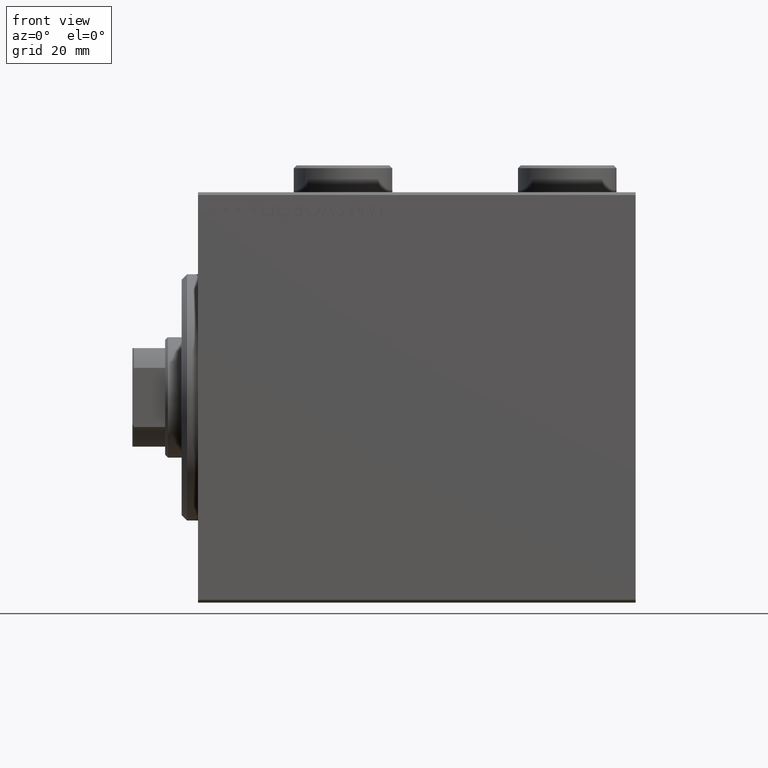
[diagram: clean part render]
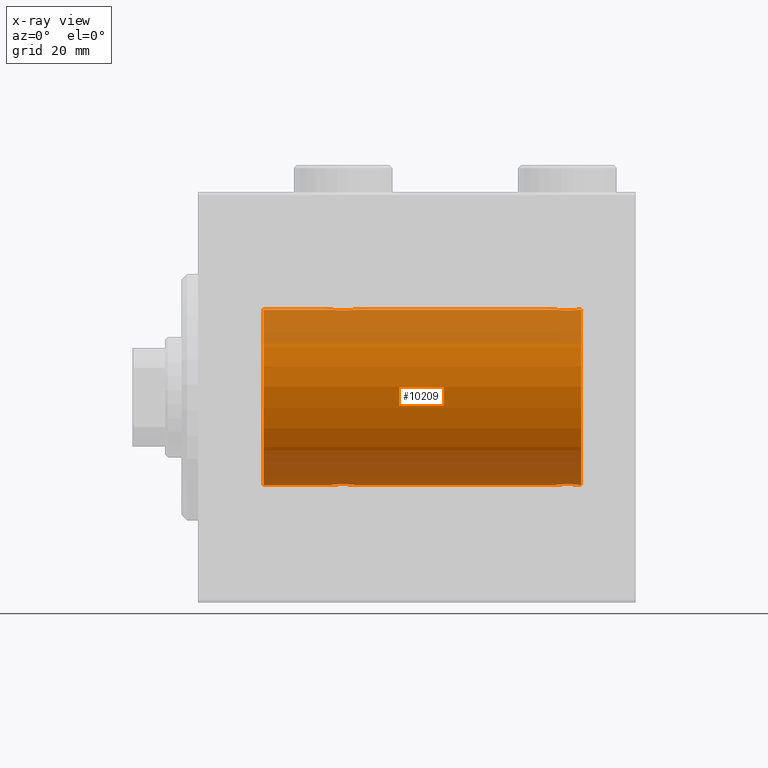
[diagram: x-ray — body ghosted, one internal face saturated and labeled with its STEP entity id]
A machine part, front view, then the same camera in x-ray: the body is ghosted and one INTERNAL B-rep face — a face not visible from any outside direction — is saturated and labeled: STEP entity #10209.
In plain terms, the highlighted cylindrical surface (partial cylindrical patch) has radius 16 mm, axis along (-1, -0, -0).
Its self-contained STEP definition (entity closure, byte-faithful):
#80 = CARTESIAN_POINT ( 'NONE',  ( 24.90061418674620342, -1.228793614424124714, 15.95381972293797368 ) ) ;
#140 = CARTESIAN_POINT ( 'NONE',  ( 70.00000000000000000, 0.000000000000000000, 16.00000000000000000 ) ) ;
#237 = VERTEX_POINT ( 'NONE', #42681 ) ;
#736 = CARTESIAN_POINT ( 'NONE',  ( 25.27971966521589664, -1.589957129871035768, 15.92097237843274549 ) ) ;
#782 = CARTESIAN_POINT ( 'NONE',  ( 70.00000000000000000, 1.959434878635765131E-15, -16.00000000000000000 ) ) ;
#1036 = VECTOR ( 'NONE', #15393, 1000.000000000000000 ) ;
#1106 = CARTESIAN_POINT ( 'NONE',  ( 67.23629537121824740, -1.986819684797422658, 15.87618369521983830 ) ) ;
#1187 = VERTEX_POINT ( 'NONE', #12704 ) ;
#1708 = EDGE_CURVE ( 'NONE', #34158, #16261, #5881, .T. ) ;
#2065 = CARTESIAN_POINT ( 'NONE',  ( 24.50000000000000711, -0.2645044045393414311, -16.00000000000000355 ) ) ;
#2559 = VECTOR ( 'NONE', #24197, 1000.000000000000000 ) ;
#2796 = CARTESIAN_POINT ( 'NONE',  ( 28.49999999999999645, -1.207828523974853969E-15, 16.00000000000000000 ) ) ;
#3500 = VECTOR ( 'NONE', #18303, 1000.000000000000000 ) ;
#3529 = CARTESIAN_POINT ( 'NONE',  ( 24.50000000000000355, -0.2611263091397209579, 16.00000000000000000 ) ) ;
#3582 = CARTESIAN_POINT ( 'NONE',  ( 24.50000000000000000, -2.931586893697621157E-15, -16.00000000000000000 ) ) ;
#3755 = CARTESIAN_POINT ( 'NONE',  ( 26.63080408576578861, -2.000094120337581050, 15.87449600834271735 ) ) ;
#3983 = CYLINDRICAL_SURFACE ( 'NONE', #35756, 16.00000000000000000 ) ;
#4202 = ORIENTED_EDGE ( 'NONE', *, *, #1708, .T. ) ;
#4578 = CARTESIAN_POINT ( 'NONE',  ( 66.17695155286794773, -1.505501573616972788, 15.92928245046055657 ) ) ;
#4800 = CARTESIAN_POINT ( 'NONE',  ( 68.01664001081053357, -1.936513707523808359, 15.88239801746206226 ) ) ;
#4829 = ORIENTED_EDGE ( 'NONE', *, *, #39714, .T. ) ;
#5025 = CARTESIAN_POINT ( 'NONE',  ( 69.24678128854694137, -1.008257970366810641, 15.97001510549667458 ) ) ;
#5177 = DIRECTION ( 'NONE',  ( -1.000000000000000000, 0.000000000000000000, 0.000000000000000000 ) ) ;
#5184 = CARTESIAN_POINT ( 'NONE',  ( 70.00000000000000000, 0.000000000000000000, 16.00000000000000000 ) ) ;
#5293 = CARTESIAN_POINT ( 'NONE',  ( 25.49921634246596014, -1.736521253711144963, -15.90565326803671375 ) ) ;
#5477 = CARTESIAN_POINT ( 'NONE',  ( 65.75183372993789988, -1.005876079953903046, 15.97016854943970188 ) ) ;
#5519 = CARTESIAN_POINT ( 'NONE',  ( 24.90236864042802267, -1.231048876942801407, -15.95364199493483426 ) ) ;
#5759 = CARTESIAN_POINT ( 'NONE',  ( 27.14636362870458086, -1.897207606501646104, -15.88720136683947537 ) ) ;
#5881 = LINE ( 'NONE', #32673, #1036 ) ;
#5996 = CARTESIAN_POINT ( 'NONE',  ( 25.98335998918949841, -1.936513707523809469, -15.88239801746204805 ) ) ;
#6037 = ORIENTED_EDGE ( 'NONE', *, *, #23940, .T. ) ;
#6182 = ORIENTED_EDGE ( 'NONE', *, *, #27705, .F. ) ;
#6544 = CARTESIAN_POINT ( 'NONE',  ( 68.50320784791315987, -1.735114343256366931, -15.90580722143557502 ) ) ;
#6772 = CARTESIAN_POINT ( 'NONE',  ( 27.38592149968496514, -1.797863738508701736, 15.89874935709250892 ) ) ;
#6992 = CARTESIAN_POINT ( 'NONE',  ( 25.17695155286792286, -1.505501573616977673, 15.92928245046054947 ) ) ;
#7219 = CARTESIAN_POINT ( 'NONE',  ( 24.55248858968731085, -0.5244724041436337192, 15.99321727742820975 ) ) ;
#7661 = CARTESIAN_POINT ( 'NONE',  ( 24.50000000000000000, -2.739635037742051899E-23, 16.00000000000000000 ) ) ;
#8032 = EDGE_CURVE ( 'NONE', #21753, #237, #10590, .T. ) ;
#8186 = CARTESIAN_POINT ( 'NONE',  ( 70.00000000000000000, 1.959434878635765131E-15, -16.00000000000000000 ) ) ;
#8251 = CARTESIAN_POINT ( 'NONE',  ( 24.50000000000000000, -2.739635037742051899E-23, 16.00000000000000000 ) ) ;
#8270 = CARTESIAN_POINT ( 'NONE',  ( 67.36633336824382923, -1.999904855391108960, 15.87451985347843042 ) ) ;
#8536 = CARTESIAN_POINT ( 'NONE',  ( 26.36919591423421139, -2.000094120337574388, -15.87449600834271024 ) ) ;
#8642 = CARTESIAN_POINT ( 'NONE',  ( 11.99999999999999645, 0.000000000000000000, 0.000000000000000000 ) ) ;
#9795 = LINE ( 'NONE', #10254, #41289 ) ;
#10209 = ADVANCED_FACE ( 'NONE', ( #14149 ), #3983, .F. ) ;
#10254 = CARTESIAN_POINT ( 'NONE',  ( 70.00000000000000000, 0.000000000000000000, 16.00000000000000000 ) ) ;
#10451 = CARTESIAN_POINT ( 'NONE',  ( 27.14376670717340545, -1.898087287925302125, 15.88709570026284545 ) ) ;
#10590 = LINE ( 'NONE', #45157, #2559 ) ;
#10669 = CARTESIAN_POINT ( 'NONE',  ( 26.76082820349364866, -1.987201773464435828, 15.87613558886576470 ) ) ;
#10896 = CARTESIAN_POINT ( 'NONE',  ( 28.49999999999999289, -0.2645044045393371013, 16.00000000000000000 ) ) ;
#11692 = CARTESIAN_POINT ( 'NONE',  ( 28.49999999999999645, 1.959434851239213200E-15, -16.00000000000000000 ) ) ;
#11906 = DIRECTION ( 'NONE',  ( -1.000000000000000000, -0.000000000000000000, -0.000000000000000000 ) ) ;
#11986 = CARTESIAN_POINT ( 'NONE',  ( 27.82304844713206293, -1.505501573616970568, -15.92928245046054947 ) ) ;
#12172 = CARTESIAN_POINT ( 'NONE',  ( 65.90061418674619631, -1.228793614424119829, 15.95381972293797013 ) ) ;
#12231 = ORIENTED_EDGE ( 'NONE', *, *, #32364, .F. ) ;
#12322 = DIRECTION ( 'NONE',  ( -1.000000000000000000, -0.000000000000000000, -0.000000000000000000 ) ) ;
#12666 = CARTESIAN_POINT ( 'NONE',  ( 28.24816627006211078, -1.005876079953899049, -15.97016854943970188 ) ) ;
#12696 = ORIENTED_EDGE ( 'NONE', *, *, #14827, .T. ) ;
#12704 = CARTESIAN_POINT ( 'NONE',  ( 11.99999999999999645, 0.000000000000000000, 16.00000000000000000 ) ) ;
#12738 = DIRECTION ( 'NONE',  ( -1.000000000000000000, 0.000000000000000000, 0.000000000000000000 ) ) ;
#12757 = CARTESIAN_POINT ( 'NONE',  ( 68.01937114547928331, -1.935780515549987646, -15.88248768234623576 ) ) ;
#12787 = AXIS2_PLACEMENT_3D ( 'NONE', #19428, #12738, #37176 ) ;
#14149 = FACE_OUTER_BOUND ( 'NONE', #34708, .T. ) ;
#14343 = CARTESIAN_POINT ( 'NONE',  ( 11.99999999999999645, 1.959434878635765131E-15, -16.00000000000000000 ) ) ;
#14353 = CARTESIAN_POINT ( 'NONE',  ( 28.24678128854693426, -1.008257970366811751, 15.97001510549667103 ) ) ;
#14544 = ORIENTED_EDGE ( 'NONE', *, *, #8032, .T. ) ;
#14580 = CARTESIAN_POINT ( 'NONE',  ( 24.75183372993787856, -1.005876079953904600, 15.97016854943970543 ) ) ;
#14803 = CARTESIAN_POINT ( 'NONE',  ( 25.98062885452072734, -1.935780515549995862, 15.88248768234623221 ) ) ;
#14827 = EDGE_CURVE ( 'NONE', #37117, #29573, #28811, .T. ) ;
#15393 = DIRECTION ( 'NONE',  ( -1.000000000000000000, -0.000000000000000000, -0.000000000000000000 ) ) ;
#15628 = CARTESIAN_POINT ( 'NONE',  ( 66.98062885452073090, -1.935780515549992975, 15.88248768234622865 ) ) ;
#16261 = VERTEX_POINT ( 'NONE', #14343 ) ;
#16443 = CARTESIAN_POINT ( 'NONE',  ( 68.72028033478413533, -1.589957129871033104, -15.92097237843275259 ) ) ;
#16758 = EDGE_CURVE ( 'NONE', #237, #30036, #31996, .T. ) ;
#17359 = CARTESIAN_POINT ( 'NONE',  ( 68.38846140829284082, -1.796613193944151865, -15.89889131367403330 ) ) ;
#17730 = VERTEX_POINT ( 'NONE', #40576 ) ;
#17815 = CARTESIAN_POINT ( 'NONE',  ( 27.01664001081050515, -1.936513707523814354, 15.88239801746204805 ) ) ;
#18040 = VERTEX_POINT ( 'NONE', #23685 ) ;
#18303 = DIRECTION ( 'NONE',  ( -1.000000000000000000, -0.000000000000000000, -0.000000000000000000 ) ) ;
#18635 = CARTESIAN_POINT ( 'NONE',  ( 66.27971966521590730, -1.589957129871035102, 15.92097237843275259 ) ) ;
#18785 = EDGE_CURVE ( 'NONE', #17730, #18040, #32395, .T. ) ;
#18859 = CARTESIAN_POINT ( 'NONE',  ( 68.14376670717344098, -1.898087287925297462, 15.88709570026284723 ) ) ;
#19089 = CARTESIAN_POINT ( 'NONE',  ( 69.44674004695640690, -0.5272875822566811532, 15.99312147175147025 ) ) ;
#19132 = CARTESIAN_POINT ( 'NONE',  ( 24.55325995304361086, -0.5272875822566835957, -15.99312147175147736 ) ) ;
#19231 = CARTESIAN_POINT ( 'NONE',  ( 69.09938581325381790, -1.228793614424116942, -15.95381972293797368 ) ) ;
#19243 = DIRECTION ( 'NONE',  ( 0.000000000000000000, 0.000000000000000000, 1.000000000000000000 ) ) ;
#19428 = CARTESIAN_POINT ( 'NONE',  ( 70.00000000000000000, 0.000000000000000000, 0.000000000000000000 ) ) ;
#19814 = CARTESIAN_POINT ( 'NONE',  ( 26.23917179650637266, -1.987201773464430055, -15.87613558886576470 ) ) ;
#19911 = CARTESIAN_POINT ( 'NONE',  ( 65.75321871145310126, -1.008257970366813083, -15.97001510549667813 ) ) ;
#20044 = CARTESIAN_POINT ( 'NONE',  ( 28.50000000000000355, -0.2611263091397186265, -16.00000000000000355 ) ) ;
#20129 = CARTESIAN_POINT ( 'NONE',  ( 68.14636362870457731, -1.897207606501646104, -15.88720136683947182 ) ) ;
#20819 = CARTESIAN_POINT ( 'NONE',  ( 66.28178127159715416, -1.591545514129671712, -15.92081325887754417 ) ) ;
#21047 = CARTESIAN_POINT ( 'NONE',  ( 27.50078365753405407, -1.736521253711149182, 15.90565326803671375 ) ) ;
#21257 = VERTEX_POINT ( 'NONE', #11692 ) ;
#21273 = CARTESIAN_POINT ( 'NONE',  ( 26.36633336824380436, -1.999904855391111402, 15.87451985347842687 ) ) ;
#21618 = VERTEX_POINT ( 'NONE', #140 ) ;
#21753 = VERTEX_POINT ( 'NONE', #8186 ) ;
#22555 = CARTESIAN_POINT ( 'NONE',  ( 66.61153859170718761, -1.796613193944154085, 15.89889131367403330 ) ) ;
#22592 = CARTESIAN_POINT ( 'NONE',  ( 70.00000000000000000, 0.000000000000000000, 0.000000000000000000 ) ) ;
#22596 = CARTESIAN_POINT ( 'NONE',  ( 25.85623329282660166, -1.898087287925298794, -15.88709570026284545 ) ) ;
#22690 = CARTESIAN_POINT ( 'NONE',  ( 69.24816627006211434, -1.005876079953901492, -15.97016854943969832 ) ) ;
#23267 = CARTESIAN_POINT ( 'NONE',  ( 24.75321871145306218, -1.008257970366813749, -15.97001510549667458 ) ) ;
#23502 = CARTESIAN_POINT ( 'NONE',  ( 28.09938581325380724, -1.228793614424118497, -15.95381972293796835 ) ) ;
#23685 = CARTESIAN_POINT ( 'NONE',  ( 69.50000000000000000, 3.590027768233731054E-15, 16.00000000000000000 ) ) ;
#23940 = EDGE_CURVE ( 'NONE', #16261, #1187, #39698, .T. ) ;
#24197 = DIRECTION ( 'NONE',  ( -1.000000000000000000, -0.000000000000000000, -0.000000000000000000 ) ) ;
#24503 = CARTESIAN_POINT ( 'NONE',  ( 25.61153859170720537, -1.796613193944160969, 15.89889131367403685 ) ) ;
#24727 = CARTESIAN_POINT ( 'NONE',  ( 27.71821872840285295, -1.591545514129674821, 15.92081325887754595 ) ) ;
#24759 = EDGE_CURVE ( 'NONE', #17730, #29573, #36769, .T. ) ;
#24953 = CARTESIAN_POINT ( 'NONE',  ( 28.49999999999999645, -1.207828523974853969E-15, 16.00000000000000000 ) ) ;
#25004 = ORIENTED_EDGE ( 'NONE', *, *, #26332, .T. ) ;
#25173 = CARTESIAN_POINT ( 'NONE',  ( 25.49679215208682592, -1.735114343256370262, 15.90580722143557502 ) ) ;
#26000 = CARTESIAN_POINT ( 'NONE',  ( 68.71821872840286005, -1.591545514129673267, 15.92081325887755305 ) ) ;
#26037 = CARTESIAN_POINT ( 'NONE',  ( 26.63366663175618498, -1.999904855391105851, -15.87451985347842687 ) ) ;
#26132 = CARTESIAN_POINT ( 'NONE',  ( 69.50000000000000000, -0.2611263091397181269, -16.00000000000000000 ) ) ;
#26227 = CARTESIAN_POINT ( 'NONE',  ( 69.49999999999997158, -0.2645044045393390997, 15.99999999999999645 ) ) ;
#26332 = EDGE_CURVE ( 'NONE', #21257, #34158, #29920, .T. ) ;
#26715 = CARTESIAN_POINT ( 'NONE',  ( 25.61407850031505617, -1.797863738508699294, -15.89874935709251247 ) ) ;
#26811 = CARTESIAN_POINT ( 'NONE',  ( 67.63366663175619919, -1.999904855391107183, -15.87451985347843042 ) ) ;
#27048 = CARTESIAN_POINT ( 'NONE',  ( 65.55325995304360731, -0.5272875822566849280, -15.99312147175147025 ) ) ;
#27705 = EDGE_CURVE ( 'NONE', #21618, #18040, #9795, .T. ) ;
#28404 = CARTESIAN_POINT ( 'NONE',  ( 28.44674004695639624, -0.5272875822566815973, 15.99312147175146670 ) ) ;
#28811 = B_SPLINE_CURVE_WITH_KNOTS ( 'NONE', 3,
 ( #7661, #3529, #7219, #14580, #80, #6992, #736, #25173, #24503, #38568, #14803, #28845, #21273, #3755, #10669, #17815, #10451, #6772, #21047, #24727, #38795, #31867, #14353, #28404, #10896, #24953 ),
 .UNSPECIFIED., .F., .F.,
 ( 4, 2, 2, 2, 2, 2, 2, 2, 2, 2, 2, 2, 4 ),
 ( 0.006259031236593858190, 0.007041222816026928080, 0.007823414395459998838, 0.008214510185176533349, 0.008605605974893067861, 0.008996701764609604107, 0.009387797554326138619, 0.009778893344042673130, 0.01016998913375920938, 0.01056108492347574389, 0.01095218071319227840, 0.01173437229262534048, 0.01251656387205840430 ),
 .UNSPECIFIED. ) ;
#28845 = CARTESIAN_POINT ( 'NONE',  ( 26.23629537121825095, -1.986819684797424435, 15.87618369521983475 ) ) ;
#29218 = CARTESIAN_POINT ( 'NONE',  ( 66.49679215208684013, -1.735114343256368930, 15.90580722143557857 ) ) ;
#29448 = CARTESIAN_POINT ( 'NONE',  ( 65.50000000000001421, -0.2611263091397203473, 16.00000000000000355 ) ) ;
#29485 = CARTESIAN_POINT ( 'NONE',  ( 28.44751141031268915, -0.5244724041436300555, -15.99321727742820620 ) ) ;
#29573 = VERTEX_POINT ( 'NONE', #2796 ) ;
#29581 = CARTESIAN_POINT ( 'NONE',  ( 69.50000000000000000, 1.959434851248285101E-15, -16.00000000000000000 ) ) ;
#29590 = CARTESIAN_POINT ( 'NONE',  ( 65.50000000000000000, -5.213754752715431108E-15, -16.00000000000000000 ) ) ;
#29668 = CARTESIAN_POINT ( 'NONE',  ( 67.63080408576577440, -2.000094120337579273, 15.87449600834271024 ) ) ;
#29920 = B_SPLINE_CURVE_WITH_KNOTS ( 'NONE', 3,
 ( #33871, #20044, #29485, #12666, #23502, #11986, #37569, #40109, #43557, #5759, #36656, #33637, #26037, #8536, #19814, #5996, #22596, #26715, #5293, #44009, #34098, #5519, #23267, #19132, #2065, #33186 ),
 .UNSPECIFIED., .F., .F.,
 ( 4, 2, 2, 2, 2, 2, 2, 2, 2, 2, 2, 2, 4 ),
 ( 0.006259031236593877272, 0.007041222816026943693, 0.007823414395460009246, 0.008214510185176542023, 0.008605605974893074800, 0.008996701764609607577, 0.009387797554326140353, 0.009778893344042673130, 0.01016998913375920591, 0.01056108492347573868, 0.01095218071319227146, 0.01173437229262534222, 0.01251656387205841471 ),
 .UNSPECIFIED. ) ;
#30036 = VERTEX_POINT ( 'NONE', #29590 ) ;
#30493 = CARTESIAN_POINT ( 'NONE',  ( 67.36919591423422560, -2.000094120337576165, -15.87449600834271024 ) ) ;
#30847 = AXIS2_PLACEMENT_3D ( 'NONE', #8642, #5177, #19243 ) ;
#31179 = CARTESIAN_POINT ( 'NONE',  ( 66.85623329282658744, -1.898087287925300348, -15.88709570026284723 ) ) ;
#31414 = CARTESIAN_POINT ( 'NONE',  ( 68.82304844713208070, -1.505501573616970346, -15.92928245046055302 ) ) ;
#31867 = CARTESIAN_POINT ( 'NONE',  ( 28.09763135957198799, -1.231048876942802961, 15.95364199493483781 ) ) ;
#31907 = CIRCLE ( 'NONE', #12787, 16.00000000000000000 ) ;
#31996 = B_SPLINE_CURVE_WITH_KNOTS ( 'NONE', 3,
 ( #29581, #26132, #40207, #22690, #19231, #31414, #16443, #6544, #17359, #20129, #12757, #41118, #26811, #30493, #40885, #41808, #31179, #45239, #37430, #20819, #34189, #38351, #19911, #27048, #37880, #41569 ),
 .UNSPECIFIED., .F., .F.,
 ( 4, 2, 2, 2, 2, 2, 2, 2, 2, 2, 2, 2, 4 ),
 ( 0.006259031236593880741, 0.007041222816026957571, 0.007823414395460033532, 0.008214510185176571513, 0.008605605974893109494, 0.008996701764609649210, 0.009387797554326187191, 0.009778893344042725172, 0.01016998913375926315, 0.01056108492347580113, 0.01095218071319234085, 0.01173437229262538559, 0.01251656387205843206 ),
 .UNSPECIFIED. ) ;
#32364 = EDGE_CURVE ( 'NONE', #21753, #21618, #31907, .T. ) ;
#32395 = B_SPLINE_CURVE_WITH_KNOTS ( 'NONE', 3,
 ( #37063, #29448, #36380, #5477, #12172, #4578, #18635, #29218, #22555, #32684, #15628, #1106, #8270, #29668, #43284, #4800, #18859, #32911, #43519, #26000, #40068, #36612, #5025, #19089, #26227, #33144 ),
 .UNSPECIFIED., .F., .F.,
 ( 4, 2, 2, 2, 2, 2, 2, 2, 2, 2, 2, 2, 4 ),
 ( 0.006259031236593860792, 0.007041222816026923743, 0.007823414395459986695, 0.008214510185176517737, 0.008605605974893048779, 0.008996701764609579821, 0.009387797554326112598, 0.009778893344042641905, 0.01016998913375917295, 0.01056108492347570399, 0.01095218071319223503, 0.01173437229262532661, 0.01251656387205841645 ),
 .UNSPECIFIED. ) ;
#32673 = CARTESIAN_POINT ( 'NONE',  ( 70.00000000000000000, 1.959434878635765131E-15, -16.00000000000000000 ) ) ;
#32684 = CARTESIAN_POINT ( 'NONE',  ( 66.85363637129539427, -1.897207606501646771, 15.88720136683946471 ) ) ;
#32795 = ORIENTED_EDGE ( 'NONE', *, *, #41013, .F. ) ;
#32911 = CARTESIAN_POINT ( 'NONE',  ( 68.38592149968496869, -1.797863738508694853, 15.89874935709250536 ) ) ;
#33144 = CARTESIAN_POINT ( 'NONE',  ( 69.50000000000000000, 3.590027768233731054E-15, 16.00000000000000000 ) ) ;
#33186 = CARTESIAN_POINT ( 'NONE',  ( 24.50000000000000000, -2.931586893697621157E-15, -16.00000000000000000 ) ) ;
#33637 = CARTESIAN_POINT ( 'NONE',  ( 26.76370462878175260, -1.986819684797417995, -15.87618369521984185 ) ) ;
#33871 = CARTESIAN_POINT ( 'NONE',  ( 28.49999999999999645, 1.959434851239213200E-15, -16.00000000000000000 ) ) ;
#34098 = CARTESIAN_POINT ( 'NONE',  ( 25.17895665196594379, -1.507256214862784161, -15.92911555180481820 ) ) ;
#34158 = VERTEX_POINT ( 'NONE', #3582 ) ;
#34189 = CARTESIAN_POINT ( 'NONE',  ( 66.17895665196596156, -1.507256214862785937, -15.92911555180481820 ) ) ;
#34708 = EDGE_LOOP ( 'NONE', ( #12231, #14544, #34978, #4829, #25004, #4202, #6037, #32795, #12696, #36087, #35049, #6182 ) ) ;
#34978 = ORIENTED_EDGE ( 'NONE', *, *, #16758, .T. ) ;
#35049 = ORIENTED_EDGE ( 'NONE', *, *, #18785, .T. ) ;
#35348 = DIRECTION ( 'NONE',  ( 0.000000000000000000, 0.000000000000000000, 1.000000000000000000 ) ) ;
#35756 = AXIS2_PLACEMENT_3D ( 'NONE', #22592, #42484, #35348 ) ;
#36087 = ORIENTED_EDGE ( 'NONE', *, *, #24759, .F. ) ;
#36113 = CARTESIAN_POINT ( 'NONE',  ( 70.00000000000000000, 0.000000000000000000, 16.00000000000000000 ) ) ;
#36380 = CARTESIAN_POINT ( 'NONE',  ( 65.55248858968732861, -0.5244724041436340523, 15.99321727742820975 ) ) ;
#36612 = CARTESIAN_POINT ( 'NONE',  ( 69.09763135957201996, -1.231048876942789194, 15.95364199493483426 ) ) ;
#36656 = CARTESIAN_POINT ( 'NONE',  ( 27.01937114547927266, -1.935780515549990088, -15.88248768234623576 ) ) ;
#36769 = LINE ( 'NONE', #5184, #39730 ) ;
#37063 = CARTESIAN_POINT ( 'NONE',  ( 65.50000000000000000, -2.738767290746308786E-23, 16.00000000000000000 ) ) ;
#37117 = VERTEX_POINT ( 'NONE', #8251 ) ;
#37176 = DIRECTION ( 'NONE',  ( 0.000000000000000000, 0.000000000000000000, 1.000000000000000000 ) ) ;
#37430 = CARTESIAN_POINT ( 'NONE',  ( 66.49921634246594238, -1.736521253711144963, -15.90565326803670665 ) ) ;
#37569 = CARTESIAN_POINT ( 'NONE',  ( 27.72028033478412112, -1.589957129871027330, -15.92097237843274904 ) ) ;
#37880 = CARTESIAN_POINT ( 'NONE',  ( 65.50000000000001421, -0.2645044045393449283, -16.00000000000000355 ) ) ;
#37911 = DIRECTION ( 'NONE',  ( -1.000000000000000000, -0.000000000000000000, -0.000000000000000000 ) ) ;
#38351 = CARTESIAN_POINT ( 'NONE',  ( 65.90236864042803688, -1.231048876942802295, -15.95364199493483426 ) ) ;
#38568 = CARTESIAN_POINT ( 'NONE',  ( 25.85363637129542624, -1.897207606501653432, 15.88720136683947182 ) ) ;
#38795 = CARTESIAN_POINT ( 'NONE',  ( 27.82104334803405266, -1.507256214862787713, 15.92911555180482530 ) ) ;
#39592 = VECTOR ( 'NONE', #11906, 1000.000000000000000 ) ;
#39698 = CIRCLE ( 'NONE', #30847, 16.00000000000000000 ) ;
#39714 = EDGE_CURVE ( 'NONE', #30036, #21257, #42946, .T. ) ;
#39730 = VECTOR ( 'NONE', #12322, 1000.000000000000000 ) ;
#39799 = LINE ( 'NONE', #36113, #39592 ) ;
#40068 = CARTESIAN_POINT ( 'NONE',  ( 68.82104334803406687, -1.507256214862775723, 15.92911555180482175 ) ) ;
#40109 = CARTESIAN_POINT ( 'NONE',  ( 27.50320784791317763, -1.735114343256362712, -15.90580722143557502 ) ) ;
#40207 = CARTESIAN_POINT ( 'NONE',  ( 69.44751141031269981, -0.5244724041436328310, -15.99321727742821331 ) ) ;
#40576 = CARTESIAN_POINT ( 'NONE',  ( 65.50000000000000000, -2.738767290746308786E-23, 16.00000000000000000 ) ) ;
#40885 = CARTESIAN_POINT ( 'NONE',  ( 67.23917179650634068, -1.987201773464430499, -15.87613558886576826 ) ) ;
#41013 = EDGE_CURVE ( 'NONE', #37117, #1187, #39799, .T. ) ;
#41118 = CARTESIAN_POINT ( 'NONE',  ( 67.76370462878180945, -1.986819684797418661, -15.87618369521984185 ) ) ;
#41289 = VECTOR ( 'NONE', #37911, 1000.000000000000000 ) ;
#41569 = CARTESIAN_POINT ( 'NONE',  ( 65.50000000000000000, -5.213754752715431108E-15, -16.00000000000000000 ) ) ;
#41808 = CARTESIAN_POINT ( 'NONE',  ( 66.98335998918946643, -1.936513707523809247, -15.88239801746206226 ) ) ;
#42484 = DIRECTION ( 'NONE',  ( -1.000000000000000000, -0.000000000000000000, -0.000000000000000000 ) ) ;
#42681 = CARTESIAN_POINT ( 'NONE',  ( 69.50000000000000000, 1.959434851248285101E-15, -16.00000000000000000 ) ) ;
#42946 = LINE ( 'NONE', #782, #3500 ) ;
#43284 = CARTESIAN_POINT ( 'NONE',  ( 67.76082820349367353, -1.987201773464430943, 15.87613558886576470 ) ) ;
#43519 = CARTESIAN_POINT ( 'NONE',  ( 68.50078365753405762, -1.736521253711147628, 15.90565326803670665 ) ) ;
#43557 = CARTESIAN_POINT ( 'NONE',  ( 27.38846140829280529, -1.796613193944152753, -15.89889131367403330 ) ) ;
#44009 = CARTESIAN_POINT ( 'NONE',  ( 25.28178127159713995, -1.591545514129671046, -15.92081325887754417 ) ) ;
#45157 = CARTESIAN_POINT ( 'NONE',  ( 70.00000000000000000, 1.959434878635765131E-15, -16.00000000000000000 ) ) ;
#45239 = CARTESIAN_POINT ( 'NONE',  ( 66.61407850031504552, -1.797863738508698628, -15.89874935709250536 ) ) ;